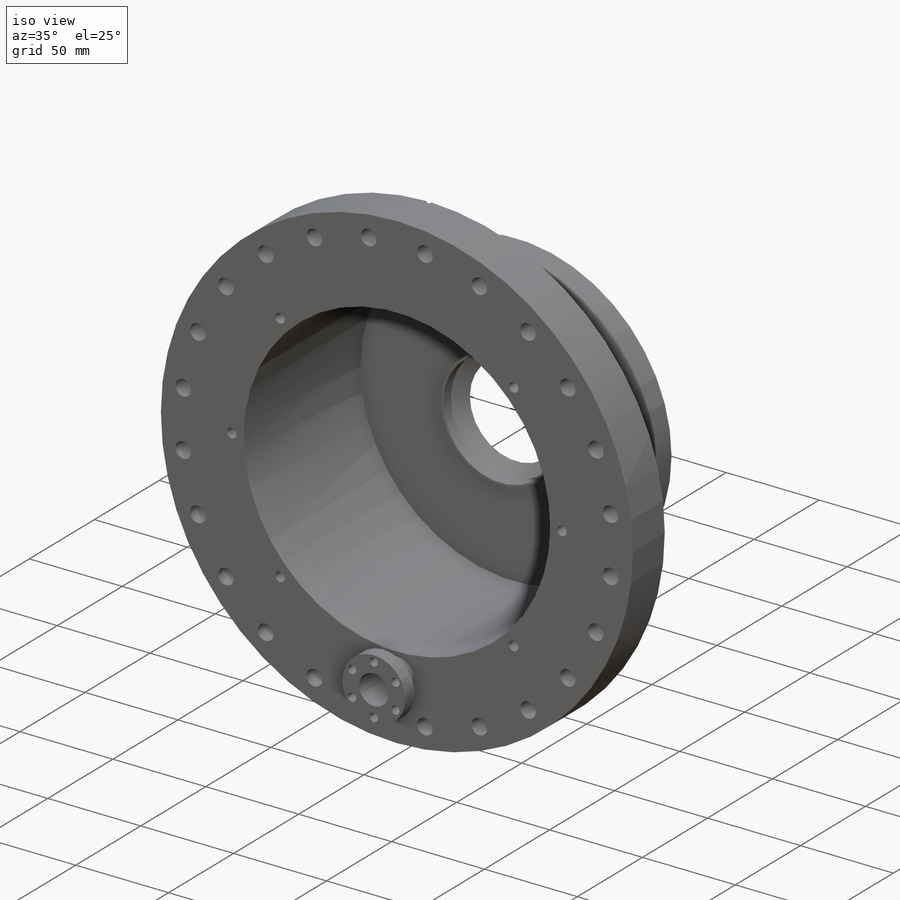
[diagram: iso view]
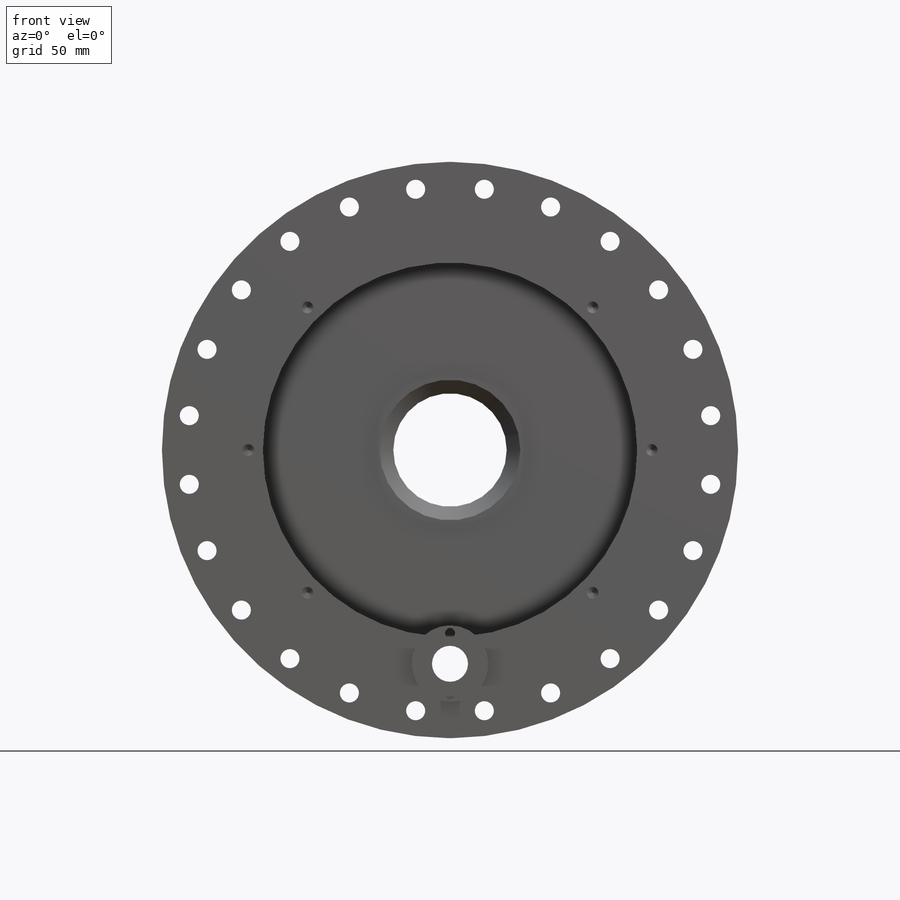
[diagram: front view]
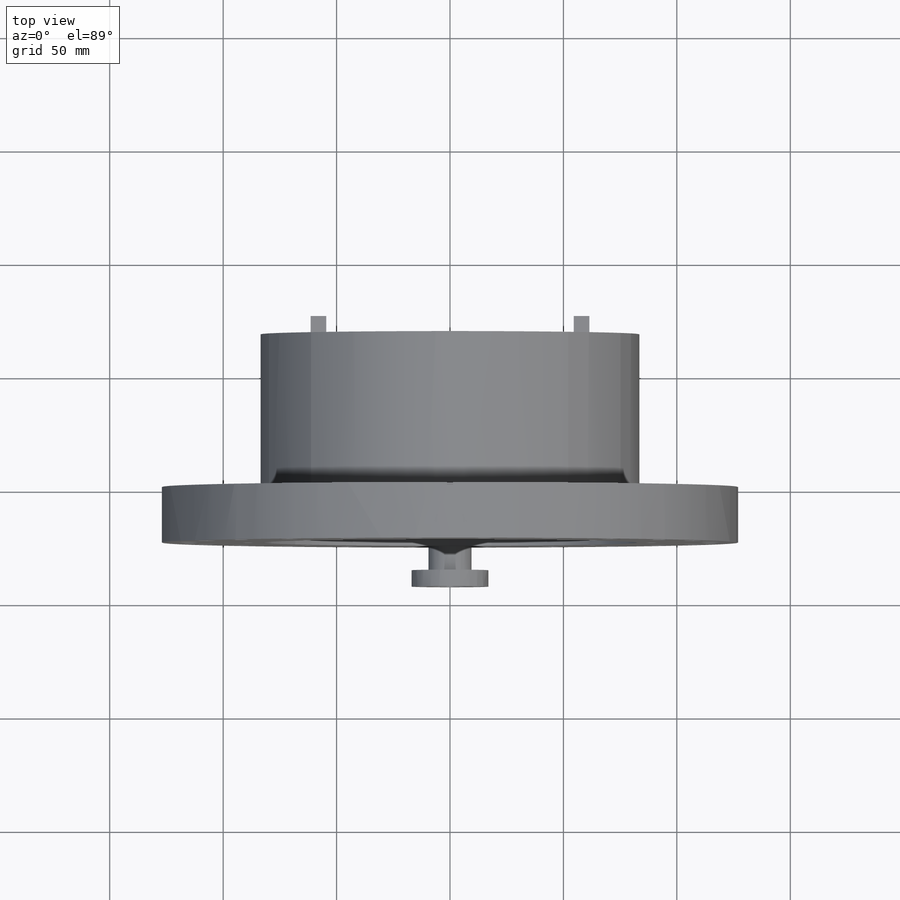
[diagram: top view]
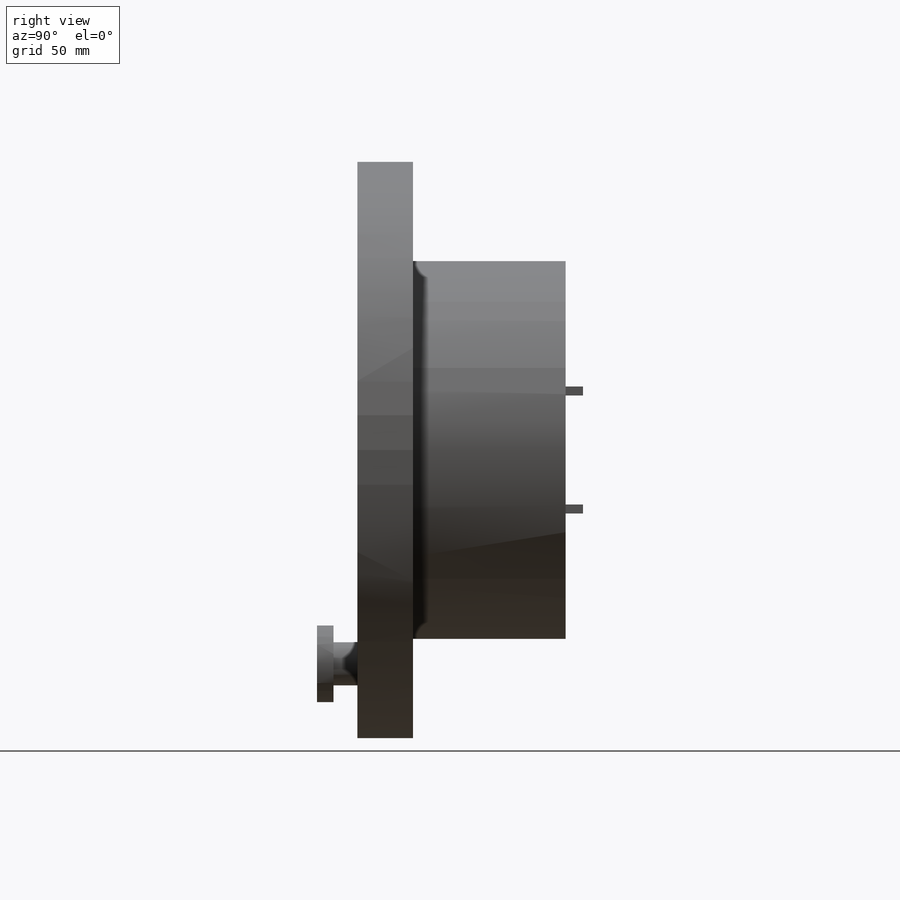
[diagram: right view]
SOLIDWORKS PART (.sldprt)
format: sldprt  version: not decoded by parser v0  size: 577,024 bytes
history: native  units: mm
features: sketch x19, thread x7, extrude x6, cut_extrude x4, mirror x4, pattern_circular x2, hole x2, material x1, revolve x1, cut_revolve x1, plane x1 (+13 scaffold rows collapsed; 2 parser-record rows omitted)
feature tree (63):
  scaffold x13  (default folders/planes/origin — collapsed)
  material  "Chrome Stainless Steel"
  sketch  "Sketch1"  dims[c1.D1=~116.84783mm c1.D2=142.6144mm c2.D1=165.0mm c2.D2=167.0mm c3.D1=2.0mm]
  extrude  "Extrude1"  Depth=67.31mm
  sketch  "Sketch2"
  extrude  "Extrude2"  Depth=24.511mm
  sketch  "Sketch3"
  cut_extrude  "Cut-Extrude1"  [1 undecoded]
  pattern_circular  "CirPattern1"  Count=24 Angle=360deg
  sketch  "Sketch4"  dims[D1=64.4mm]
  extrude  "Extrude3"  Depth=2mm
  sketch  "Sketch5"  dims[c1.D1=50.0mm c1.D2=~4.107426mm c2.D1=50.0mm c2.D2=6.0mm c2.D3=6.0mm c2.D4=64.4mm c2.D5=~6.115585mm c3.D5=45.0deg]
  revolve  "Revolve1"  Angle=360deg
  sketch  "Sketch8"  dims[c1.D1=~83.296244mm c2.D1=45.0deg c2.D2=55.0mm]
  hole  "#4-40 Tapped Hole1"  Diameter=2.2606mm Depth=7.62mm
  sketch  "3DSketch1"
  sketch  "Sketch9"  dims[hole-wizard template sketch: 50 standard entries collapsed; hole parameters above]
  thread  "Hole Thread1"  Diameter=5.588mm  [1 undecoded]
  mirror  "Mirror1"
  mirror  "Mirror2"
  sketch  "Sketch11"  dims[D1=0.5mm D2=0.5mm]
  cut_revolve  "Cut-Revolve1"  Angle=360deg
  parser-record x2  (decoder bookkeeping rows leaked as tree rows — omitted from the tree; the rows remain in map.json)
  sketch  "RF Feedtrhough angle and distance sketch"  dims[c1.D2=188.5mm c1.D1=~136.854683mm c2.D1=180.0deg]
  plane  "Rf Feedthrough flange plane"  Offset=17.78mm
  sketch  "Sketch13"  dims[D1=15.875mm]
  cut_extrude  "Extrude4"  [1 undecoded]
  sketch  "Sketch14"  dims[D1=18.9992mm]
  extrude  "Extrude5"  [1 undecoded]
  sketch  "Sketch15"  dims[D1=33.782mm]
  extrude  "Extrude6"  Depth=7.239mm
  sketch  "Sketch16"  dims[D1=4.3688mm D2=13.4874mm]
  cut_extrude  "Extrude7"  Depth=7.239mm
  pattern_circular  "CirPattern2"  Count=6 Angle=360deg
  sketch  "Sketch17"  dims[D1=58.0mm D2=26.0mm]
  extrude  "Extrude8"  Depth=7.62mm
  mirror  "Mirror3"
  mirror  "Mirror4"
  sketch  "Sketch18"  dims[D2=177.8mm D1=45.0deg]
  hole  "1/4-20 Tapped Hole1"  Diameter=5.1054mm Depth=12.7mm
  sketch  "3DSketch3"
  sketch  "Sketch20"  dims[hole-wizard template sketch: 47 standard entries collapsed; hole parameters kept: c15.Tap Drill Depth=12.7mm c15.D3=~14.816244mm c15.Drill Angle=118.0deg]
  thread  "Hole Thread2"  Diameter=12.7mm  [1 undecoded]
  thread  "Hole Thread3"  Diameter=12.7mm  [1 undecoded]
  thread  "Hole Thread4"  Diameter=12.7mm  [1 undecoded]
  thread  "Hole Thread5"  Diameter=12.7mm  [1 undecoded]
  thread  "Hole Thread6"  Diameter=12.7mm  [1 undecoded]
  thread  "Hole Thread7"  Diameter=12.7mm  [1 undecoded]
  sketch  "Sketch21"  dims[D1=2.54mm]
  cut_extrude  "Extrude9"  Depth=1.27mm
decode coverage: 35 of 46 modeling features carry decoded parameters
note: ~ marks probable driven/reference dimensions
note: 10 parameter values undecoded
summary: no parameter record found for 3 features
note: suppression state not decoded; provenance and decode notes live in map.json
